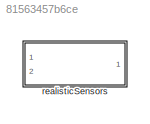
MODEL slx_81563457b6ce
KIND library
CONFIG AbsTol = auto
CONFIG EnableMultiTasking = off
CONFIG FixedStep = auto
CONFIG MaxStep = auto
CONFIG MinStep = auto
CONFIG RelTol = 1e-3
CONFIG SampleTimeConstraint = Unconstrained
CONFIG SolverName = VariableStepAuto
CONFIG StartTime = 0.0
CONFIG StopTime = 10.0
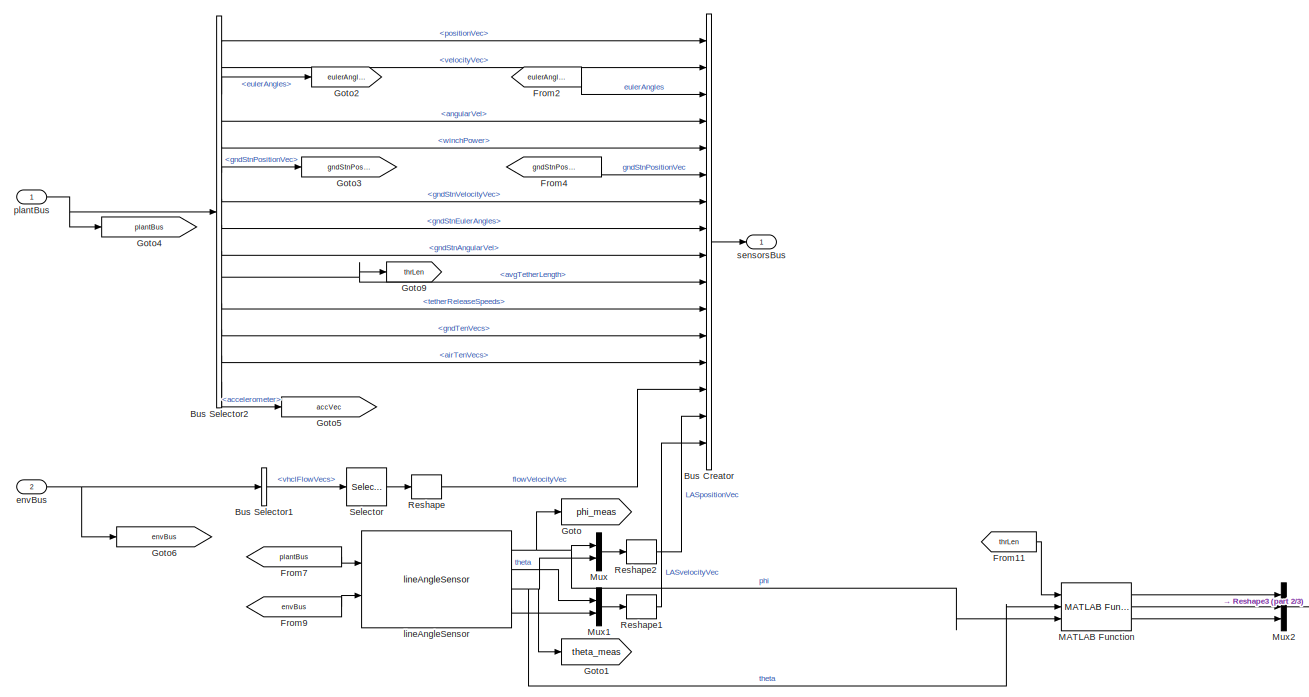
[diagram: realisticSensors - part 1/3, top left region]
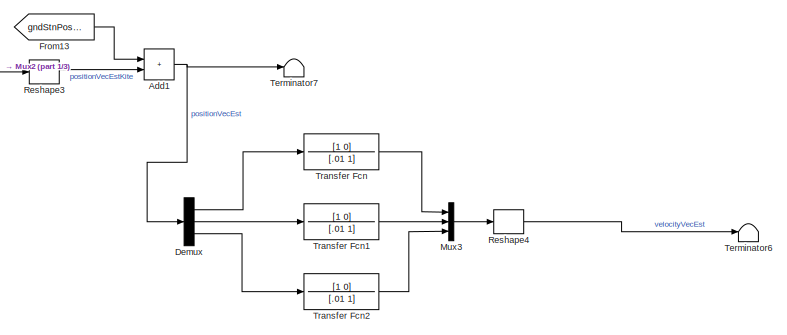
[diagram: realisticSensors - part 2/3, middle right region]
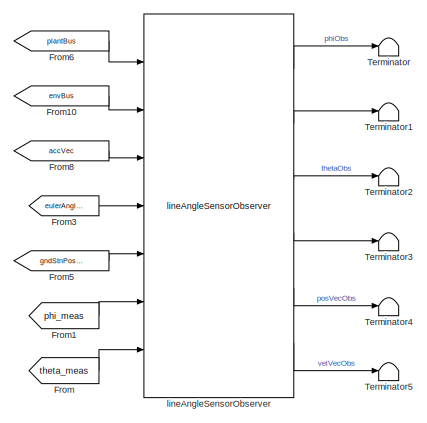
[diagram: realisticSensors - part 3/3, bottom left region]
BLOCK [SubSystem] realisticSensors
  InitFcn = initializeBussesFromBlock(gcb)
  LoadFcn = initializeBussesFromBlock(gcb)
  Ports = [2, 1]
  RequestExecContextInheritance = off
  StartFcn = initializeBussesFromBlock(gcb)
  VariantControl = VSS_sensors_realisticSensors
BLOCK [Sum] realisticSensors/Add1
  IconShape = rectangular
  Ports = [2, 1]
BLOCK [BusCreator] realisticSensors/Bus Creator
  DisplayOption = bar
  InheritFromInputs = on
  Inputs = 16
  Ports = [16, 1]
BLOCK [BusSelector] realisticSensors/Bus Selector1
  OutputSignals = vhclFlowVecs
  Ports = [1, 1]
BLOCK [BusSelector] realisticSensors/Bus Selector2
  OutputSignals = positionVec,velocityVec,eulerAngles,angularVel,winchPower,gndStnPositionVec,gndStnVelocityVec,gndStnEulerAngles,gndStnAngularVel,avgTetherLength,tetherReleaseSpeeds,gndTenVecs,airTenVecs,accelerometer
  Ports = [1, 14]
BLOCK [Demux] realisticSensors/Demux
  Outputs = 3
  Ports = [1, 3]
BLOCK [From] realisticSensors/From
  Commented = on
  GotoTag = theta_meas
BLOCK [From] realisticSensors/From1
  Commented = on
  GotoTag = phi_meas
BLOCK [From] realisticSensors/From10
  Commented = on
  GotoTag = envBus
BLOCK [From] realisticSensors/From11
  GotoTag = thrLen
BLOCK [From] realisticSensors/From13
  GotoTag = gndStnPosVec
BLOCK [From] realisticSensors/From2
  GotoTag = eulerAngles
BLOCK [From] realisticSensors/From3
  Commented = on
  GotoTag = eulerAngles
BLOCK [From] realisticSensors/From4
  GotoTag = gndStnPosVec
BLOCK [From] realisticSensors/From5
  Commented = on
  GotoTag = gndStnPosVec
BLOCK [From] realisticSensors/From6
  Commented = on
  GotoTag = plantBus
BLOCK [From] realisticSensors/From7
  GotoTag = plantBus
BLOCK [From] realisticSensors/From8
  Commented = on
  GotoTag = accVec
BLOCK [From] realisticSensors/From9
  GotoTag = envBus
BLOCK [Goto] realisticSensors/Goto
  Commented = on
  GotoTag = phi_meas
BLOCK [Goto] realisticSensors/Goto1
  Commented = on
  GotoTag = theta_meas
BLOCK [Goto] realisticSensors/Goto2
  GotoTag = eulerAngles
BLOCK [Goto] realisticSensors/Goto3
  GotoTag = gndStnPosVec
BLOCK [Goto] realisticSensors/Goto4
  GotoTag = plantBus
BLOCK [Goto] realisticSensors/Goto5
  GotoTag = accVec
BLOCK [Goto] realisticSensors/Goto6
  GotoTag = envBus
BLOCK [Goto] realisticSensors/Goto9
  GotoTag = thrLen
BLOCK [Reference] realisticSensors/MATLAB Function  REF=lasPosEst_cl/lasPosEst/MATLAB Function
  Ports = [3, 3]
  SourceBlock = lasPosEst_cl/lasPosEst/MATLAB Function
  SourceType = SubSystem
BLOCK [Mux] realisticSensors/Mux
  DisplayOption = bar
  Inputs = 2
  Ports = [2, 1]
BLOCK [Mux] realisticSensors/Mux1
  DisplayOption = bar
  Inputs = 2
  Ports = [2, 1]
BLOCK [Mux] realisticSensors/Mux2
  DisplayOption = bar
  Inputs = 3
  Ports = [3, 1]
BLOCK [Mux] realisticSensors/Mux3
  DisplayOption = bar
  Inputs = 3
  Ports = [3, 1]
BLOCK [Reshape] realisticSensors/Reshape
  OutputDimensionality = Column vector (2-D)
  Ports = [1, 1]
BLOCK [Reshape] realisticSensors/Reshape1
  OutputDimensionality = Column vector (2-D)
  Ports = [1, 1]
BLOCK [Reshape] realisticSensors/Reshape2
  OutputDimensionality = Column vector (2-D)
  Ports = [1, 1]
BLOCK [Reshape] realisticSensors/Reshape3
  OutputDimensionality = Column vector (2-D)
  Ports = [1, 1]
BLOCK [Reshape] realisticSensors/Reshape4
  OutputDimensionality = Column vector (2-D)
  Ports = [1, 1]
BLOCK [Selector] realisticSensors/Selector
  IndexOptions = Select all,Index vector (dialog)
  Indices = [1 3],1
  InputPortWidth = 3
  NumberOfDimensions = 2
  OutputSizes = 1,1
  Ports = [1, 1]
BLOCK [Terminator] realisticSensors/Terminator
  Commented = on
BLOCK [Terminator] realisticSensors/Terminator1
  Commented = on
BLOCK [Terminator] realisticSensors/Terminator2
  Commented = on
BLOCK [Terminator] realisticSensors/Terminator3
  Commented = on
BLOCK [Terminator] realisticSensors/Terminator4
  Commented = on
BLOCK [Terminator] realisticSensors/Terminator5
  Commented = on
BLOCK [Terminator] realisticSensors/Terminator6
BLOCK [Terminator] realisticSensors/Terminator7
BLOCK [TransferFcn] realisticSensors/Transfer Fcn
  Denominator = [.01 1]
  Numerator = [1 0]
BLOCK [TransferFcn] realisticSensors/Transfer Fcn1
  Denominator = [.01 1]
  Numerator = [1 0]
BLOCK [TransferFcn] realisticSensors/Transfer Fcn2
  Denominator = [.01 1]
  Numerator = [1 0]
BLOCK [Inport] realisticSensors/envBus
  OutDataTypeStr = Bus: envBus
  Port = 2
BLOCK [Reference] realisticSensors/lineAngleSensor  REF=lineAngleSensor/lineAngleSensor
  Ports = [2, 4]
  SourceBlock = lineAngleSensor/lineAngleSensor
BLOCK [Reference] realisticSensors/lineAngleSensorObserver  REF=lineAngleSensorObserver/lineAngleSensorObserver
  Commented = on
  Ports = [7, 6]
  SourceBlock = lineAngleSensorObserver/lineAngleSensorObserver
BLOCK [Inport] realisticSensors/plantBus
  OutDataTypeStr = Bus: plantBus
BLOCK [Outport] realisticSensors/sensorsBus
  OutDataTypeStr = Bus: sensorsBus
  VectorParamsAs1DForOutWhenUnconnected = off
NET realisticSensors/Add1:1 -> realisticSensors/Demux:1, realisticSensors/Terminator7:1
LINE realisticSensors/Bus Creator:1 -> realisticSensors/sensorsBus:1
LINE realisticSensors/Bus Selector1:1 -> realisticSensors/Selector:1
LINE realisticSensors/Bus Selector2:1 -> realisticSensors/Bus Creator:1
NET realisticSensors/Bus Selector2:10 -> realisticSensors/Bus Creator:10, realisticSensors/Goto9:1
LINE realisticSensors/Bus Selector2:11 -> realisticSensors/Bus Creator:11
LINE realisticSensors/Bus Selector2:12 -> realisticSensors/Bus Creator:12
LINE realisticSensors/Bus Selector2:13 -> realisticSensors/Bus Creator:13
LINE realisticSensors/Bus Selector2:14 -> realisticSensors/Goto5:1
LINE realisticSensors/Bus Selector2:2 -> realisticSensors/Bus Creator:2
LINE realisticSensors/Bus Selector2:3 -> realisticSensors/Goto2:1
LINE realisticSensors/Bus Selector2:4 -> realisticSensors/Bus Creator:4
LINE realisticSensors/Bus Selector2:5 -> realisticSensors/Bus Creator:5
LINE realisticSensors/Bus Selector2:6 -> realisticSensors/Goto3:1
LINE realisticSensors/Bus Selector2:7 -> realisticSensors/Bus Creator:7
LINE realisticSensors/Bus Selector2:8 -> realisticSensors/Bus Creator:8
LINE realisticSensors/Bus Selector2:9 -> realisticSensors/Bus Creator:9
LINE realisticSensors/Demux:1 -> realisticSensors/Transfer Fcn:1
LINE realisticSensors/Demux:2 -> realisticSensors/Transfer Fcn1:1
LINE realisticSensors/Demux:3 -> realisticSensors/Transfer Fcn2:1
LINE realisticSensors/From10:1 -> realisticSensors/lineAngleSensorObserver:2
LINE realisticSensors/From11:1 -> realisticSensors/MATLAB Function:1
LINE realisticSensors/From13:1 -> realisticSensors/Add1:1
LINE realisticSensors/From1:1 -> realisticSensors/lineAngleSensorObserver:6
LINE realisticSensors/From2:1 -> realisticSensors/Bus Creator:3
LINE realisticSensors/From3:1 -> realisticSensors/lineAngleSensorObserver:4
LINE realisticSensors/From4:1 -> realisticSensors/Bus Creator:6
LINE realisticSensors/From5:1 -> realisticSensors/lineAngleSensorObserver:5
LINE realisticSensors/From6:1 -> realisticSensors/lineAngleSensorObserver:1
LINE realisticSensors/From7:1 -> realisticSensors/lineAngleSensor:1
LINE realisticSensors/From8:1 -> realisticSensors/lineAngleSensorObserver:3
LINE realisticSensors/From9:1 -> realisticSensors/lineAngleSensor:2
LINE realisticSensors/From:1 -> realisticSensors/lineAngleSensorObserver:7
LINE realisticSensors/MATLAB Function:1 -> realisticSensors/Mux2:1
LINE realisticSensors/MATLAB Function:2 -> realisticSensors/Mux2:2
LINE realisticSensors/MATLAB Function:3 -> realisticSensors/Mux2:3
LINE realisticSensors/Mux1:1 -> realisticSensors/Reshape1:1
LINE realisticSensors/Mux2:1 -> realisticSensors/Reshape3:1
LINE realisticSensors/Mux3:1 -> realisticSensors/Reshape4:1
LINE realisticSensors/Mux:1 -> realisticSensors/Reshape2:1
LINE realisticSensors/Reshape1:1 -> realisticSensors/Bus Creator:16
LINE realisticSensors/Reshape2:1 -> realisticSensors/Bus Creator:15
LINE realisticSensors/Reshape3:1 -> realisticSensors/Add1:2
LINE realisticSensors/Reshape4:1 -> realisticSensors/Terminator6:1
LINE realisticSensors/Reshape:1 -> realisticSensors/Bus Creator:14
LINE realisticSensors/Selector:1 -> realisticSensors/Reshape:1
LINE realisticSensors/Transfer Fcn1:1 -> realisticSensors/Mux3:2
LINE realisticSensors/Transfer Fcn2:1 -> realisticSensors/Mux3:3
LINE realisticSensors/Transfer Fcn:1 -> realisticSensors/Mux3:1
NET realisticSensors/envBus:1 -> realisticSensors/Bus Selector1:1, realisticSensors/Goto6:1
NET realisticSensors/lineAngleSensor:1 -> realisticSensors/Goto:1, realisticSensors/MATLAB Function:3, realisticSensors/Mux:1
LINE realisticSensors/lineAngleSensor:2 -> realisticSensors/Mux1:1
NET realisticSensors/lineAngleSensor:3 -> realisticSensors/Goto1:1, realisticSensors/MATLAB Function:2, realisticSensors/Mux:2
LINE realisticSensors/lineAngleSensor:4 -> realisticSensors/Mux1:2
LINE realisticSensors/lineAngleSensorObserver:1 -> realisticSensors/Terminator:1
LINE realisticSensors/lineAngleSensorObserver:2 -> realisticSensors/Terminator1:1
LINE realisticSensors/lineAngleSensorObserver:3 -> realisticSensors/Terminator2:1
LINE realisticSensors/lineAngleSensorObserver:4 -> realisticSensors/Terminator3:1
LINE realisticSensors/lineAngleSensorObserver:5 -> realisticSensors/Terminator4:1
LINE realisticSensors/lineAngleSensorObserver:6 -> realisticSensors/Terminator5:1
NET realisticSensors/plantBus:1 -> realisticSensors/Bus Selector2:1, realisticSensors/Goto4:1
note: NET lines group one-source signal fan-out (src -> all destinations, sorted); 1:1 wires keep LINE
